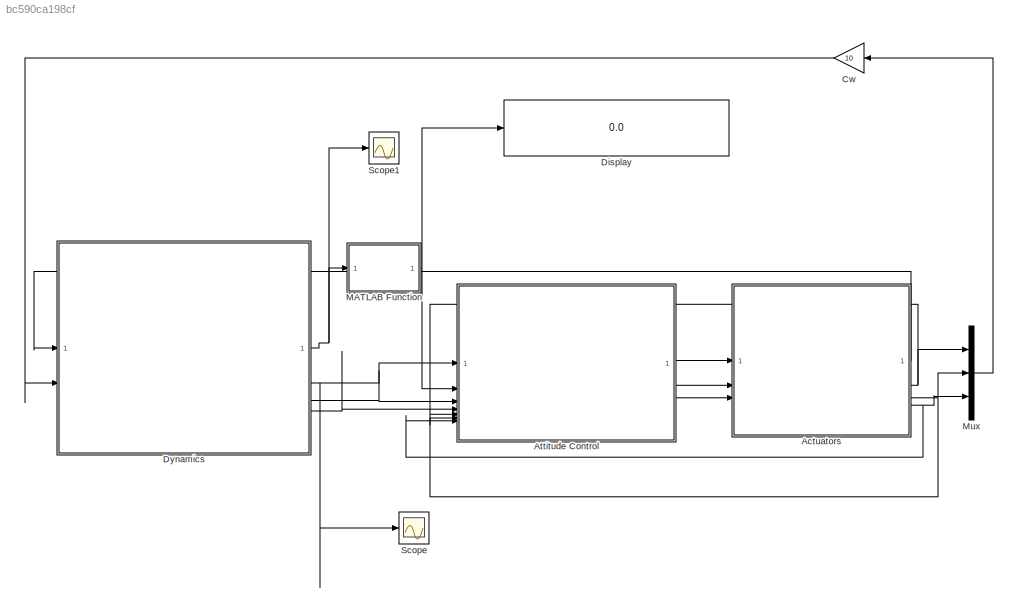
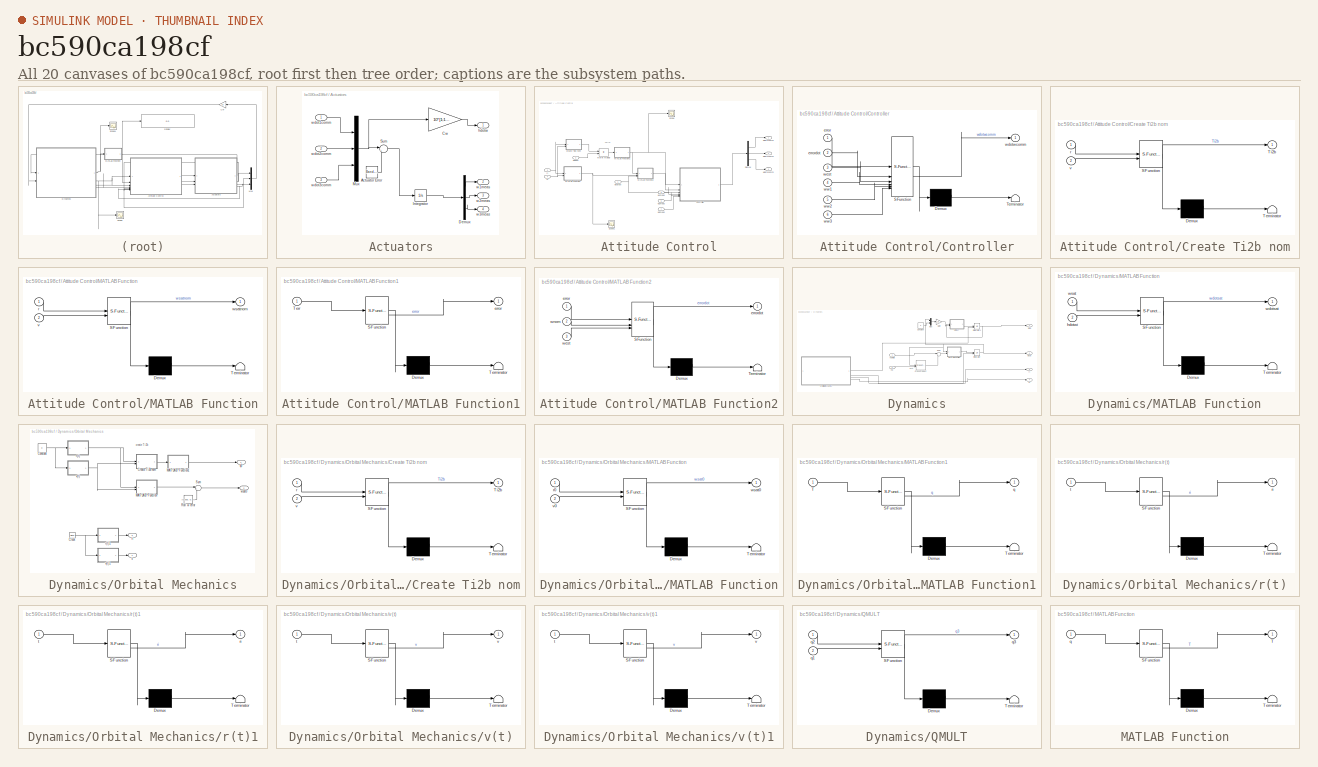
[diagram: thumbnail index - all 20 canvases of the model, root first then tree order]
MODEL slx_bc590ca198cf
KIND model
CONFIG AbsTol = auto
CONFIG EnableMultiTasking = off
CONFIG FixedStep = auto
CONFIG MaxStep = auto
CONFIG MinStep = auto
CONFIG RelTol = 1e-3
CONFIG SampleTimeConstraint = Unconstrained
CONFIG SolverName = VariableStepAuto
CONFIG StartTime = 0.0
CONFIG StopTime = 5340
BLOCK [SubSystem] Actuators
BLOCK [Reference] Actuators/Actuator Error  REF=simulink/Sources/Band-Limited
White Noise
  Commented = on
  SourceBlock = simulink/Sources/Band-Limited\nWhite Noise
  SourceType = Band-Limited White Noise.
BLOCK [Gain] Actuators/Cw
  Gain = 10*[1;1;1]
BLOCK [Demux] Actuators/Demux
  Outputs = 3
BLOCK [Integrator] Actuators/Integrator
  InitialCondition = [0;0;0]
BLOCK [Mux] Actuators/Mux
  DisplayOption = bar
  Inputs = 3
BLOCK [Sum] Actuators/Sum
  Inputs = |++
BLOCK [Outport] Actuators/hdotw
BLOCK [Outport] Actuators/w1meas
  Port = 2
BLOCK [Outport] Actuators/w2meas
  Port = 3
BLOCK [Outport] Actuators/w3meas
  Port = 4
BLOCK [Inport] Actuators/wdot1comm
BLOCK [Inport] Actuators/wdot2comm
  Port = 2
BLOCK [Inport] Actuators/wdot3comm
  Port = 3
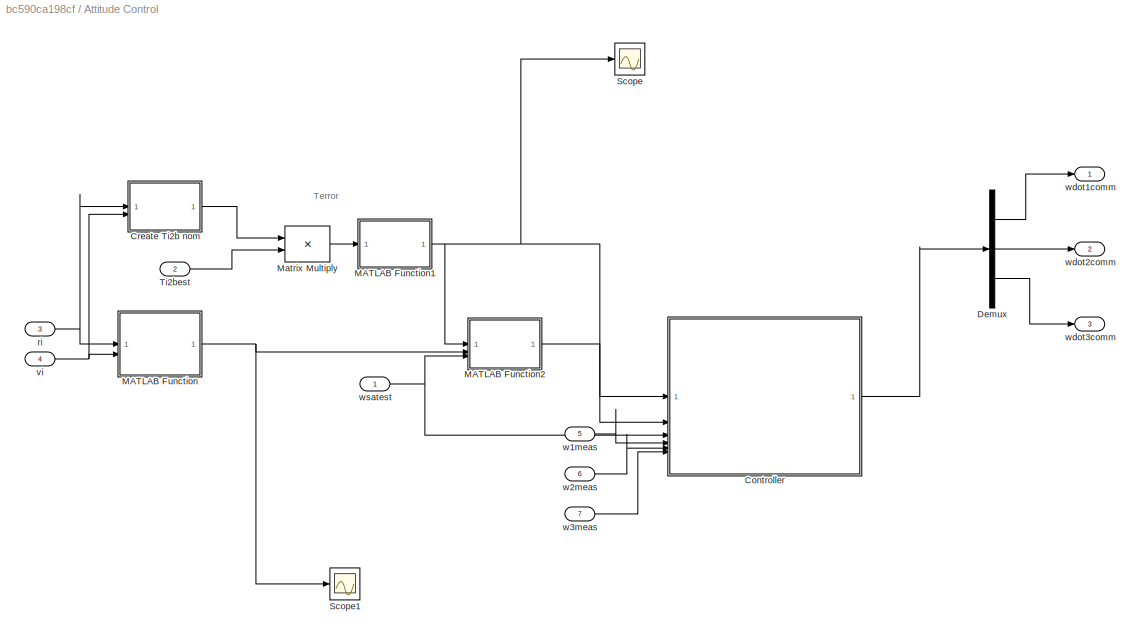
BLOCK [SubSystem] Attitude Control
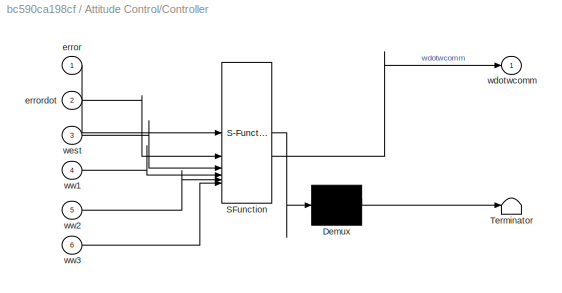
BLOCK [SubSystem] Attitude Control/Controller
  ErrorFcn = Stateflow.Translate.translate
  LibrarySourceBlock = simulink/User-Defined\nFunctions/MATLAB Function
  PermitHierarchicalResolution = ExplicitOnly
  SFBlockType = MATLAB Function
  TreatAsAtomicUnit = on
BLOCK [Demux] Attitude Control/Controller/ Demux 
  Outputs = 1
BLOCK [S-Function] Attitude Control/Controller/ SFunction 
  EnableBusSupport = on
  FunctionName = sf_sfun
  PortCounts = [6 2]
  SFcnIsStateOwnerBlock = off
  SFunctionDeploymentMode = off
  Tag = Stateflow S-Function 18
BLOCK [Terminator] Attitude Control/Controller/ Terminator 
BLOCK [Inport] Attitude Control/Controller/error
BLOCK [Inport] Attitude Control/Controller/errordot
  Port = 2
BLOCK [Outport] Attitude Control/Controller/wdotwcomm
BLOCK [Inport] Attitude Control/Controller/west
  Port = 3
BLOCK [Inport] Attitude Control/Controller/ww1
  Port = 4
BLOCK [Inport] Attitude Control/Controller/ww2
  Port = 5
BLOCK [Inport] Attitude Control/Controller/ww3
  Port = 6
BLOCK [SubSystem] Attitude Control/Create Ti2b nom
  ErrorFcn = Stateflow.Translate.translate
  LibrarySourceBlock = simulink/User-Defined\nFunctions/MATLAB Function
  PermitHierarchicalResolution = ExplicitOnly
  SFBlockType = MATLAB Function
  TreatAsAtomicUnit = on
BLOCK [Demux] Attitude Control/Create Ti2b nom/ Demux 
  Outputs = 1
BLOCK [S-Function] Attitude Control/Create Ti2b nom/ SFunction 
  EnableBusSupport = on
  FunctionName = sf_sfun
  PortCounts = [2 2]
  SFcnIsStateOwnerBlock = off
  SFunctionDeploymentMode = off
  Tag = Stateflow S-Function 14
BLOCK [Terminator] Attitude Control/Create Ti2b nom/ Terminator 
BLOCK [Outport] Attitude Control/Create Ti2b nom/Ti2b
BLOCK [Inport] Attitude Control/Create Ti2b nom/r
BLOCK [Inport] Attitude Control/Create Ti2b nom/v
  Port = 2
BLOCK [Demux] Attitude Control/Demux
  Outputs = 3
BLOCK [SubSystem] Attitude Control/MATLAB Function
  ErrorFcn = Stateflow.Translate.translate
  LibrarySourceBlock = simulink/User-Defined\nFunctions/MATLAB Function
  PermitHierarchicalResolution = ExplicitOnly
  SFBlockType = MATLAB Function
  TreatAsAtomicUnit = on
BLOCK [Demux] Attitude Control/MATLAB Function/ Demux 
  Outputs = 1
BLOCK [S-Function] Attitude Control/MATLAB Function/ SFunction 
  EnableBusSupport = on
  FunctionName = sf_sfun
  PortCounts = [2 2]
  SFcnIsStateOwnerBlock = off
  SFunctionDeploymentMode = off
  Tag = Stateflow S-Function 15
BLOCK [Terminator] Attitude Control/MATLAB Function/ Terminator 
BLOCK [Inport] Attitude Control/MATLAB Function/r
BLOCK [Inport] Attitude Control/MATLAB Function/v
  Port = 2
BLOCK [Outport] Attitude Control/MATLAB Function/wsatnom
BLOCK [SubSystem] Attitude Control/MATLAB Function1
  ErrorFcn = Stateflow.Translate.translate
  LibrarySourceBlock = simulink/User-Defined\nFunctions/MATLAB Function
  PermitHierarchicalResolution = ExplicitOnly
  SFBlockType = MATLAB Function
  TreatAsAtomicUnit = on
BLOCK [Demux] Attitude Control/MATLAB Function1/ Demux 
  Outputs = 1
BLOCK [S-Function] Attitude Control/MATLAB Function1/ SFunction 
  EnableBusSupport = on
  FunctionName = sf_sfun
  PortCounts = [1 2]
  SFcnIsStateOwnerBlock = off
  SFunctionDeploymentMode = off
  Tag = Stateflow S-Function 16
BLOCK [Terminator] Attitude Control/MATLAB Function1/ Terminator 
BLOCK [Inport] Attitude Control/MATLAB Function1/Terr
BLOCK [Outport] Attitude Control/MATLAB Function1/error
BLOCK [SubSystem] Attitude Control/MATLAB Function2
  ErrorFcn = Stateflow.Translate.translate
  LibrarySourceBlock = simulink/User-Defined\nFunctions/MATLAB Function
  PermitHierarchicalResolution = ExplicitOnly
  SFBlockType = MATLAB Function
  TreatAsAtomicUnit = on
BLOCK [Demux] Attitude Control/MATLAB Function2/ Demux 
  Outputs = 1
BLOCK [S-Function] Attitude Control/MATLAB Function2/ SFunction 
  EnableBusSupport = on
  FunctionName = sf_sfun
  PortCounts = [3 2]
  SFcnIsStateOwnerBlock = off
  SFunctionDeploymentMode = off
  Tag = Stateflow S-Function 17
BLOCK [Terminator] Attitude Control/MATLAB Function2/ Terminator 
BLOCK [Inport] Attitude Control/MATLAB Function2/error
BLOCK [Outport] Attitude Control/MATLAB Function2/errordot
BLOCK [Inport] Attitude Control/MATLAB Function2/west
  Port = 3
BLOCK [Inport] Attitude Control/MATLAB Function2/wnom
  Port = 2
BLOCK [Product] Attitude Control/Matrix Multiply
  Multiplication = Matrix(*)
BLOCK [Scope] Attitude Control/Scope
  Floating = off
  NumInputPorts = 1
  ScopeSpecificationString = Simulink.scopes.TimeScopeBlockCfg('CurrentConfiguration', extmgr.ConfigurationSet(extmgr.Configuration('Core','General UI',true),extmgr.Configuration('Core','Source UI',true),extmgr.Configuration('Sources','WiredSimulink',true,'DataLoggingVariableName','ScopeData1'),extmgr.Configuration('Visuals','Time Domain',true,'SerializedDisplays',{struct('MinYLimReal','-0.02347','MaxYLimReal','0.01957','YLab...<+1438ch>
BLOCK [Scope] Attitude Control/Scope1
  Floating = off
  NumInputPorts = 1
  ScopeSpecificationString = Simulink.scopes.TimeScopeBlockCfg('CurrentConfiguration', extmgr.ConfigurationSet(extmgr.Configuration('Core','General UI',true),extmgr.Configuration('Core','Source UI',true),extmgr.Configuration('Sources','WiredSimulink',true,'DataLoggingVariableName','ScopeData2'),extmgr.Configuration('Visuals','Time Domain',true,'SerializedDisplays',{struct('MinYLimReal','-0.00015','MaxYLimReal','0.00132','YLab...<+1447ch>
BLOCK [Inport] Attitude Control/Ti2best
  Port = 2
BLOCK [Inport] Attitude Control/ri
  Port = 3
BLOCK [Inport] Attitude Control/vi
  Port = 4
BLOCK [Inport] Attitude Control/w1meas
  Port = 5
BLOCK [Inport] Attitude Control/w2meas
  Port = 6
BLOCK [Inport] Attitude Control/w3meas
  Port = 7
BLOCK [Outport] Attitude Control/wdot1comm
BLOCK [Outport] Attitude Control/wdot2comm
  Port = 2
BLOCK [Outport] Attitude Control/wdot3comm
  Port = 3
BLOCK [Inport] Attitude Control/wsatest
BLOCK [Gain] Cw
  Gain = 10
BLOCK [Display] Display
  Decimation = 1
BLOCK [SubSystem] Dynamics
BLOCK [Constant] Dynamics/Constant
  Value = 0
BLOCK [Reference] Dynamics/Cross Product  REF=matrix_library/Cross Product
  LibrarySourceBlock = simulink/Matrix\nOperations/Cross Product
  SourceBlock = matrix_library/Cross Product
  SourceType = CrossProduct
BLOCK [Gain] Dynamics/Gain
  Gain = 1/2
BLOCK [Integrator] Dynamics/Integrator
  InitialConditionSource = external
BLOCK [Integrator] Dynamics/Integrator1
  InitialConditionSource = external
BLOCK [SubSystem] Dynamics/MATLAB Function
  ErrorFcn = Stateflow.Translate.translate
  LibrarySourceBlock = simulink/User-Defined\nFunctions/MATLAB Function
  PermitHierarchicalResolution = ExplicitOnly
  SFBlockType = MATLAB Function
  TreatAsAtomicUnit = on
BLOCK [Demux] Dynamics/MATLAB Function/ Demux 
  Outputs = 1
BLOCK [S-Function] Dynamics/MATLAB Function/ SFunction 
  EnableBusSupport = on
  FunctionName = sf_sfun
  PortCounts = [2 2]
  SFcnIsStateOwnerBlock = off
  SFunctionDeploymentMode = off
  Tag = Stateflow S-Function 1
BLOCK [Terminator] Dynamics/MATLAB Function/ Terminator 
BLOCK [Inport] Dynamics/MATLAB Function/hdotwi
  Port = 2
BLOCK [Outport] Dynamics/MATLAB Function/wdotsat
BLOCK [Inport] Dynamics/MATLAB Function/wsat
BLOCK [Mux] Dynamics/Mux
  DisplayOption = bar
  Inputs = 2
BLOCK [SubSystem] Dynamics/Orbital Mechanics
BLOCK [Clock] Dynamics/Orbital Mechanics/Clock
BLOCK [Constant] Dynamics/Orbital Mechanics/Constant
  Value = 0
BLOCK [SubSystem] Dynamics/Orbital Mechanics/Create Ti2b nom
  ErrorFcn = Stateflow.Translate.translate
  LibrarySourceBlock = simulink/User-Defined\nFunctions/MATLAB Function
  PermitHierarchicalResolution = ExplicitOnly
  SFBlockType = MATLAB Function
  TreatAsAtomicUnit = on
BLOCK [Demux] Dynamics/Orbital Mechanics/Create Ti2b nom/ Demux 
  Outputs = 1
BLOCK [S-Function] Dynamics/Orbital Mechanics/Create Ti2b nom/ SFunction 
  EnableBusSupport = on
  FunctionName = sf_sfun
  PortCounts = [2 2]
  SFcnIsStateOwnerBlock = off
  SFunctionDeploymentMode = off
  Tag = Stateflow S-Function 11
BLOCK [Terminator] Dynamics/Orbital Mechanics/Create Ti2b nom/ Terminator 
BLOCK [Outport] Dynamics/Orbital Mechanics/Create Ti2b nom/Ti2b
BLOCK [Inport] Dynamics/Orbital Mechanics/Create Ti2b nom/r
BLOCK [Inport] Dynamics/Orbital Mechanics/Create Ti2b nom/v
  Port = 2
BLOCK [SubSystem] Dynamics/Orbital Mechanics/MATLAB Function
  ErrorFcn = Stateflow.Translate.translate
  LibrarySourceBlock = simulink/User-Defined\nFunctions/MATLAB Function
  PermitHierarchicalResolution = ExplicitOnly
  SFBlockType = MATLAB Function
  TreatAsAtomicUnit = on
BLOCK [Demux] Dynamics/Orbital Mechanics/MATLAB Function/ Demux 
  Outputs = 1
BLOCK [S-Function] Dynamics/Orbital Mechanics/MATLAB Function/ SFunction 
  EnableBusSupport = on
  FunctionName = sf_sfun
  PortCounts = [2 2]
  SFcnIsStateOwnerBlock = off
  SFunctionDeploymentMode = off
  Tag = Stateflow S-Function 12
BLOCK [Terminator] Dynamics/Orbital Mechanics/MATLAB Function/ Terminator 
BLOCK [Inport] Dynamics/Orbital Mechanics/MATLAB Function/r0
BLOCK [Inport] Dynamics/Orbital Mechanics/MATLAB Function/v0
  Port = 2
BLOCK [Outport] Dynamics/Orbital Mechanics/MATLAB Function/wsat0
BLOCK [SubSystem] Dynamics/Orbital Mechanics/MATLAB Function1
  ErrorFcn = Stateflow.Translate.translate
  LibrarySourceBlock = simulink/User-Defined\nFunctions/MATLAB Function
  PermitHierarchicalResolution = ExplicitOnly
  SFBlockType = MATLAB Function
  TreatAsAtomicUnit = on
BLOCK [Demux] Dynamics/Orbital Mechanics/MATLAB Function1/ Demux 
  Outputs = 1
BLOCK [S-Function] Dynamics/Orbital Mechanics/MATLAB Function1/ SFunction 
  EnableBusSupport = on
  FunctionName = sf_sfun
  PortCounts = [1 2]
  SFcnIsStateOwnerBlock = off
  SFunctionDeploymentMode = off
  Tag = Stateflow S-Function 13
BLOCK [Terminator] Dynamics/Orbital Mechanics/MATLAB Function1/ Terminator 
BLOCK [Inport] Dynamics/Orbital Mechanics/MATLAB Function1/T
BLOCK [Outport] Dynamics/Orbital Mechanics/MATLAB Function1/q
BLOCK [Constant] Dynamics/Orbital Mechanics/Roll w error
  Commented = on
  Value = [0.005; 0; 0]
BLOCK [Sum] Dynamics/Orbital Mechanics/Sum
  Inputs = |++
BLOCK [Outport] Dynamics/Orbital Mechanics/q0
BLOCK [SubSystem] Dynamics/Orbital Mechanics/r(t)
  ErrorFcn = Stateflow.Translate.translate
  LibrarySourceBlock = simulink/User-Defined\nFunctions/MATLAB Function
  PermitHierarchicalResolution = ExplicitOnly
  SFBlockType = MATLAB Function
  TreatAsAtomicUnit = on
BLOCK [Demux] Dynamics/Orbital Mechanics/r(t)/ Demux 
  Outputs = 1
BLOCK [S-Function] Dynamics/Orbital Mechanics/r(t)/ SFunction 
  EnableBusSupport = on
  FunctionName = sf_sfun
  PortCounts = [1 2]
  SFcnIsStateOwnerBlock = off
  SFunctionDeploymentMode = off
  Tag = Stateflow S-Function 2
BLOCK [Terminator] Dynamics/Orbital Mechanics/r(t)/ Terminator 
BLOCK [Outport] Dynamics/Orbital Mechanics/r(t)/ri
BLOCK [Inport] Dynamics/Orbital Mechanics/r(t)/t
BLOCK [SubSystem] Dynamics/Orbital Mechanics/r(t)1
  ErrorFcn = Stateflow.Translate.translate
  LibrarySourceBlock = simulink/User-Defined\nFunctions/MATLAB Function
  PermitHierarchicalResolution = ExplicitOnly
  SFBlockType = MATLAB Function
  TreatAsAtomicUnit = on
BLOCK [Demux] Dynamics/Orbital Mechanics/r(t)1/ Demux 
  Outputs = 1
BLOCK [S-Function] Dynamics/Orbital Mechanics/r(t)1/ SFunction 
  EnableBusSupport = on
  FunctionName = sf_sfun
  PortCounts = [1 2]
  SFcnIsStateOwnerBlock = off
  SFunctionDeploymentMode = off
  Tag = Stateflow S-Function 19
BLOCK [Terminator] Dynamics/Orbital Mechanics/r(t)1/ Terminator 
BLOCK [Outport] Dynamics/Orbital Mechanics/r(t)1/ri
BLOCK [Inport] Dynamics/Orbital Mechanics/r(t)1/t
BLOCK [Outport] Dynamics/Orbital Mechanics/ri
  Port = 3
BLOCK [Outport] Dynamics/Orbital Mechanics/v
  Port = 4
BLOCK [SubSystem] Dynamics/Orbital Mechanics/v(t)
  ErrorFcn = Stateflow.Translate.translate
  LibrarySourceBlock = simulink/User-Defined\nFunctions/MATLAB Function
  PermitHierarchicalResolution = ExplicitOnly
  SFBlockType = MATLAB Function
  TreatAsAtomicUnit = on
BLOCK [Demux] Dynamics/Orbital Mechanics/v(t)/ Demux 
  Outputs = 1
BLOCK [S-Function] Dynamics/Orbital Mechanics/v(t)/ SFunction 
  EnableBusSupport = on
  FunctionName = sf_sfun
  PortCounts = [1 2]
  SFcnIsStateOwnerBlock = off
  SFunctionDeploymentMode = off
  Tag = Stateflow S-Function 3
BLOCK [Terminator] Dynamics/Orbital Mechanics/v(t)/ Terminator 
BLOCK [Inport] Dynamics/Orbital Mechanics/v(t)/t
BLOCK [Outport] Dynamics/Orbital Mechanics/v(t)/v
BLOCK [SubSystem] Dynamics/Orbital Mechanics/v(t)1
  ErrorFcn = Stateflow.Translate.translate
  LibrarySourceBlock = simulink/User-Defined\nFunctions/MATLAB Function
  PermitHierarchicalResolution = ExplicitOnly
  SFBlockType = MATLAB Function
  TreatAsAtomicUnit = on
BLOCK [Demux] Dynamics/Orbital Mechanics/v(t)1/ Demux 
  Outputs = 1
BLOCK [S-Function] Dynamics/Orbital Mechanics/v(t)1/ SFunction 
  EnableBusSupport = on
  FunctionName = sf_sfun
  PortCounts = [1 2]
  SFcnIsStateOwnerBlock = off
  SFunctionDeploymentMode = off
  Tag = Stateflow S-Function 20
BLOCK [Terminator] Dynamics/Orbital Mechanics/v(t)1/ Terminator 
BLOCK [Inport] Dynamics/Orbital Mechanics/v(t)1/t
BLOCK [Outport] Dynamics/Orbital Mechanics/v(t)1/v
BLOCK [Outport] Dynamics/Orbital Mechanics/wsat0
  Port = 2
BLOCK [SubSystem] Dynamics/QMULT
  ErrorFcn = Stateflow.Translate.translate
  LibrarySourceBlock = simulink/User-Defined\nFunctions/MATLAB Function
  PermitHierarchicalResolution = ExplicitOnly
  SFBlockType = MATLAB Function
  TreatAsAtomicUnit = on
BLOCK [Demux] Dynamics/QMULT/ Demux 
  Outputs = 1
BLOCK [S-Function] Dynamics/QMULT/ SFunction 
  EnableBusSupport = on
  FunctionName = sf_sfun
  PortCounts = [2 2]
  SFcnIsStateOwnerBlock = off
  SFunctionDeploymentMode = off
  Tag = Stateflow S-Function 10
BLOCK [Terminator] Dynamics/QMULT/ Terminator 
BLOCK [Inport] Dynamics/QMULT/q1
  Port = 2
BLOCK [Inport] Dynamics/QMULT/q2
BLOCK [Outport] Dynamics/QMULT/q3
BLOCK [Sum] Dynamics/Sum
  Inputs = |++
BLOCK [Inport] Dynamics/hdotwb
BLOCK [Inport] Dynamics/hw
  Port = 2
BLOCK [Outport] Dynamics/qi2b
BLOCK [Outport] Dynamics/ri
  Port = 3
BLOCK [Outport] Dynamics/vi
  Port = 4
BLOCK [Outport] Dynamics/wsat
  Port = 2
BLOCK [SubSystem] MATLAB Function
  ErrorFcn = Stateflow.Translate.translate
  LibrarySourceBlock = simulink/User-Defined\nFunctions/MATLAB Function
  PermitHierarchicalResolution = ExplicitOnly
  SFBlockType = MATLAB Function
  TreatAsAtomicUnit = on
BLOCK [Demux] MATLAB Function/ Demux 
  Outputs = 1
BLOCK [S-Function] MATLAB Function/ SFunction 
  EnableBusSupport = on
  FunctionName = sf_sfun
  PortCounts = [1 2]
  SFcnIsStateOwnerBlock = off
  SFunctionDeploymentMode = off
  Tag = Stateflow S-Function 4
BLOCK [Terminator] MATLAB Function/ Terminator 
BLOCK [Outport] MATLAB Function/T
BLOCK [Inport] MATLAB Function/q
BLOCK [Mux] Mux
  DisplayOption = bar
  Inputs = 3
BLOCK [Scope] Scope
  Floating = off
  NumInputPorts = 1
  ScopeSpecificationString = Simulink.scopes.TimeScopeBlockCfg('CurrentConfiguration', extmgr.ConfigurationSet(extmgr.Configuration('Core','General UI',true),extmgr.Configuration('Core','Source UI',true),extmgr.Configuration('Sources','WiredSimulink',true),extmgr.Configuration('Visuals','Time Domain',true,'SerializedDisplays',{struct('MinYLimReal','-0.00646','MaxYLimReal','0.0058','YLabelReal','','MinYLimMag','0.00000','MaxYL...<+1435ch>
BLOCK [Scope] Scope1
  Floating = off
  NumInputPorts = 1
  ScopeSpecificationString = Simulink.scopes.TimeScopeBlockCfg('CurrentConfiguration', extmgr.ConfigurationSet(extmgr.Configuration('Core','General UI',true),extmgr.Configuration('Core','Source UI',true),extmgr.Configuration('Sources','WiredSimulink',true,'DataLoggingVariableName','ScopeData3'),extmgr.Configuration('Visuals','Time Domain',true,'SerializedDisplays',{struct('MinYLimReal','-1.03895','MaxYLimReal','1.14197','YLab...<+1445ch>
ANNOTATION Attitude Control: Terror
ANNOTATION Dynamics: wsat
ANNOTATION Dynamics/Orbital Mechanics: create Ti2b
LINE Actuators/Actuator Error:1 -> Actuators/Sum:2
LINE Actuators/Cw:1 -> Actuators/hdotw:1
LINE Actuators/Demux:1 -> Actuators/w1meas:1
LINE Actuators/Demux:2 -> Actuators/w2meas:1
LINE Actuators/Demux:3 -> Actuators/w3meas:1
LINE Actuators/Integrator:1 -> Actuators/Demux:1
NET Actuators/Mux:1 -> Actuators/Cw:1, Actuators/Sum:1
LINE Actuators/Sum:1 -> Actuators/Integrator:1
LINE Actuators/wdot1comm:1 -> Actuators/Mux:1
LINE Actuators/wdot2comm:1 -> Actuators/Mux:2
LINE Actuators/wdot3comm:1 -> Actuators/Mux:3
LINE Actuators:1 -> Dynamics:1
NET Actuators:2 -> Attitude Control:5, Mux:1
NET Actuators:3 -> Attitude Control:6, Mux:2
NET Actuators:4 -> Attitude Control:7, Mux:3
LINE Attitude Control/Controller:1 -> Attitude Control/Demux:1
LINE Attitude Control/Create Ti2b nom:1 -> Attitude Control/Matrix Multiply:1
LINE Attitude Control/Demux:1 -> Attitude Control/wdot1comm:1
LINE Attitude Control/Demux:2 -> Attitude Control/wdot2comm:1
LINE Attitude Control/Demux:3 -> Attitude Control/wdot3comm:1
NET Attitude Control/MATLAB Function1:1 -> Attitude Control/Controller:1, Attitude Control/MATLAB Function2:1, Attitude Control/Scope:1
LINE Attitude Control/MATLAB Function2:1 -> Attitude Control/Controller:2
NET Attitude Control/MATLAB Function:1 -> Attitude Control/MATLAB Function2:2, Attitude Control/Scope1:1
LINE Attitude Control/Matrix Multiply:1 -> Attitude Control/MATLAB Function1:1
LINE Attitude Control/Ti2best:1 -> Attitude Control/Matrix Multiply:2
NET Attitude Control/ri:1 -> Attitude Control/Create Ti2b nom:1, Attitude Control/MATLAB Function:1
NET Attitude Control/vi:1 -> Attitude Control/Create Ti2b nom:2, Attitude Control/MATLAB Function:2
LINE Attitude Control/w1meas:1 -> Attitude Control/Controller:4
LINE Attitude Control/w2meas:1 -> Attitude Control/Controller:5
LINE Attitude Control/w3meas:1 -> Attitude Control/Controller:6
NET Attitude Control/wsatest:1 -> Attitude Control/Controller:3, Attitude Control/MATLAB Function2:3
LINE Attitude Control:1 -> Actuators:1
LINE Attitude Control:2 -> Actuators:2
LINE Attitude Control:3 -> Actuators:3
LINE Cw:1 -> Dynamics:2
LINE Dynamics/Constant:1 -> Dynamics/Mux:2
LINE Dynamics/Cross Product:1 -> Dynamics/Sum:2
LINE Dynamics/Gain:1 -> Dynamics/QMULT:2
NET Dynamics/Integrator1:1 -> Dynamics/QMULT:1, Dynamics/qi2b:1
NET Dynamics/Integrator:1 -> Dynamics/Cross Product:1, Dynamics/MATLAB Function:1, Dynamics/Mux:1, Dynamics/wsat:1
LINE Dynamics/MATLAB Function:1 -> Dynamics/Integrator:1
LINE Dynamics/Mux:1 -> Dynamics/Gain:1
NET Dynamics/Orbital Mechanics/Clock:1 -> Dynamics/Orbital Mechanics/r(t)1:1, Dynamics/Orbital Mechanics/v(t)1:1
NET Dynamics/Orbital Mechanics/Constant:1 -> Dynamics/Orbital Mechanics/r(t):1, Dynamics/Orbital Mechanics/v(t):1
LINE Dynamics/Orbital Mechanics/Create Ti2b nom:1 -> Dynamics/Orbital Mechanics/MATLAB Function1:1
LINE Dynamics/Orbital Mechanics/MATLAB Function1:1 -> Dynamics/Orbital Mechanics/q0:1
LINE Dynamics/Orbital Mechanics/MATLAB Function:1 -> Dynamics/Orbital Mechanics/Sum:1
LINE Dynamics/Orbital Mechanics/Roll w error:1 -> Dynamics/Orbital Mechanics/Sum:2
LINE Dynamics/Orbital Mechanics/Sum:1 -> Dynamics/Orbital Mechanics/wsat0:1
LINE Dynamics/Orbital Mechanics/r(t)1:1 -> Dynamics/Orbital Mechanics/ri:1
NET Dynamics/Orbital Mechanics/r(t):1 -> Dynamics/Orbital Mechanics/Create Ti2b nom:1, Dynamics/Orbital Mechanics/MATLAB Function:1
LINE Dynamics/Orbital Mechanics/v(t)1:1 -> Dynamics/Orbital Mechanics/v:1
NET Dynamics/Orbital Mechanics/v(t):1 -> Dynamics/Orbital Mechanics/Create Ti2b nom:2, Dynamics/Orbital Mechanics/MATLAB Function:2
LINE Dynamics/Orbital Mechanics:1 -> Dynamics/Integrator1:2
LINE Dynamics/Orbital Mechanics:2 -> Dynamics/Integrator:2
LINE Dynamics/Orbital Mechanics:3 -> Dynamics/ri:1
LINE Dynamics/Orbital Mechanics:4 -> Dynamics/vi:1
LINE Dynamics/QMULT:1 -> Dynamics/Integrator1:1
LINE Dynamics/Sum:1 -> Dynamics/MATLAB Function:2
LINE Dynamics/hdotwb:1 -> Dynamics/Sum:1
LINE Dynamics/hw:1 -> Dynamics/Cross Product:2
NET Dynamics:1 -> MATLAB Function:1, Scope1:1
NET Dynamics:2 -> Attitude Control:1, Scope:1
LINE Dynamics:3 -> Attitude Control:3
LINE Dynamics:4 -> Attitude Control:4
NET MATLAB Function:1 -> Attitude Control:2, Display:1
LINE Mux:1 -> Cw:1
note: NET lines group one-source signal fan-out (src -> all destinations, sorted); 1:1 wires keep LINE
CHART Attitude Control/Controller states=1 transitions=1
  STATE_LABEL 'eML_blk_kernel()'
  STATE_LABEL 'SCRIPT:\nfunction wdotwcomm = fcn(error,errordot,west,ww1,ww2,ww3)\nJsat = [1000 0 0; 0 500 0; 0 0 600];\nKd = 0.05*eye(3);\nKp = 0.08*eye(3);\nCw = 10;\nwdotwcomm = (Jsat*Kd ./ Cw) * error + (Jsat*Kp ./ Cw) * errordot - cross(west, [ww1; ww2; ww3]);\n'
CHART Dynamics/Orbital Mechanics/r(t)1 states=1 transitions=1
  STATE_LABEL 'eML_blk_kernel()'
  STATE_LABEL 'SCRIPT:\nfunction ri = fcn(t)\n\np = 6.6e6;\nmu = 3.986e14;\nw = sqrt(mu / (p^3));\n\nri = (p/sqrt(2)) * [-cos(w*t); sqrt(2)*sin(w*t); cos(w*t)];\n\n'
CHART Dynamics/MATLAB Function states=1 transitions=1
  STATE_LABEL 'eML_blk_kernel()'
  STATE_LABEL 'SCRIPT:\nfunction wdotsat = fcn(wsat,hdotwi)\n\nJ = [1000 0 0;\n     0 500 0;\n     0 0 600];\n\nwdotsat = inv(J) * (cross(-wsat,(J*wsat)) - hdotwi); %#ok<MINV> \nend'
CHART Dynamics/Orbital Mechanics/v(t)1 states=1 transitions=1
  STATE_LABEL 'eML_blk_kernel()'
  STATE_LABEL 'SCRIPT:\nfunction v = fcn(t)\n\np = 6.6e6;\nmu = 3.986e14;\nw = sqrt(mu / (p^3));\n\nv = (w*p/sqrt(2)) * [sin(w*t); sqrt(2)*cos(w*t); -sin(w*t)];\n'
CHART Dynamics/Orbital Mechanics/r(t) states=1 transitions=1
  STATE_LABEL 'eML_blk_kernel()'
  STATE_LABEL 'SCRIPT:\nfunction ri = fcn(t)\n\np = 6.6e6;\nmu = 3.986e14;\nw = sqrt(mu / (p^3));\n\nri = (p/sqrt(2)) * [-cos(w*t); sqrt(2)*sin(w*t); cos(w*t)];\n\n'
CHART Dynamics/Orbital Mechanics/v(t) states=1 transitions=1
  STATE_LABEL 'eML_blk_kernel()'
  STATE_LABEL 'SCRIPT:\nfunction v = fcn(t)\n\np = 6.6e6;\nmu = 3.986e14;\nw = sqrt(mu / (p^3));\n\nv = (w*p/sqrt(2)) * [sin(w*t); sqrt(2)*cos(w*t); -sin(w*t)];\n'
CHART MATLAB Function states=1 transitions=1
  STATE_LABEL 'eML_blk_kernel()'
  STATE_LABEL 'SCRIPT:\nfunction T = q2T(q)\n\nT = eye(3) - 2*q(4)*skewsym(q(1:3)) + 2*(skewsym(q(1:3))*skewsym(q(1:3)));\n\nend\n\nfunction skewed = skewsym(v)\nskewed = [0 -v(3) v(2);\n          v(3) 0 -v(1);\n          -v(2) v(1) 0];\nend\n'
CHART Dynamics/QMULT states=1 transitions=1
  STATE_LABEL 'eML_blk_kernel()'
  STATE_LABEL 'SCRIPT:\nfunction q3 = qmult(q2,q1)\n\nq3 = [q2(4).*q1(1:3) + q1(4).*q2(1:3) - cross(q2(1:3),q1(1:3));\n    q2(4)*q1(4) - dot(q2(1:3),q1(1:3))];\n\nend'
CHART Dynamics/Orbital Mechanics/Create Ti2b nom states=1 transitions=1
  STATE_LABEL 'eML_blk_kernel()'
  STATE_LABEL "SCRIPT:\nfunction Ti2b = fcn(r,v)\n\nxib = -r / norm(r);\nyib = v / norm(v);\nzib = cross(xib,yib);\n\nTi2b = [xib'; yib'; zib'];\n"
CHART Dynamics/Orbital Mechanics/MATLAB Function states=1 transitions=1
  STATE_LABEL 'eML_blk_kernel()'
  STATE_LABEL 'SCRIPT:\nfunction wsat0= fcn(r0,v0)\nmu = 3.986e14;\nrho = 6.6e6;\nwmag = sqrt(mu / rho^3);\n\nh_orbit = cross(r0,v0); % this is the axis our satellite is orbiting about\naxis = h_orbit / norm(h_orbit);\n\nwsat0 = wmag .* [0;0;1];\n\n\n\n'
CHART Dynamics/Orbital Mechanics/MATLAB Function1 states=1 transitions=1
  STATE_LABEL 'eML_blk_kernel()'
  STATE_LABEL 'SCRIPT:\nfunction q = T2q(T)\n\nq = zeros(4,1);\n\nq(4) = sqrt(.25*(1 + T(1,1) + T(2,2) + T(3,3)));\n\nq = (1/(4*q(4))) .* [T(2,3) - T(3,2); T(3,1) + T(1,3); T(1,2) + T(2,1); 4 * q(4)^2 ];\n\nend\n\n\n\n'
CHART Attitude Control/Create Ti2b nom states=1 transitions=1
  STATE_LABEL 'eML_blk_kernel()'
  STATE_LABEL "SCRIPT:\nfunction Ti2b = fcn(r,v)\n\nxib = -r / norm(r);\nyib = v / norm(v);\nzib = cross(xib,yib);\n\nTi2b = [xib'; yib'; zib'];\n"
CHART Attitude Control/MATLAB Function states=1 transitions=1
  STATE_LABEL 'eML_blk_kernel()'
  STATE_LABEL 'SCRIPT:\nfunction wsatnom = fcn(r,v)\nmu = 398600.0;\nrho = 6600;\nwmag = sqrt(mu / rho^3);\n\n\n\nwsatnom = wmag .* [0;0;1];\n\n\n\n'
CHART Attitude Control/MATLAB Function1 states=1 transitions=1
  STATE_LABEL 'eML_blk_kernel()'
  STATE_LABEL 'SCRIPT:\nfunction error = fcn(Terr)\n\nerror = -0.5 * [Terr(3,2) - Terr(2,3); Terr(1,3) - Terr(3,1); Terr(2,1) - Terr(1,2)];\n'
CHART Attitude Control/MATLAB Function2 states=1 transitions=1
  STATE_LABEL 'eML_blk_kernel()'
  STATE_LABEL 'SCRIPT:\nfunction errordot = fcn(error,wnom,west)\n\nerrordot = -skewsym(wnom)*error + (-wnom + west);\n\nend\nfunction skewed = skewsym(v)\nskewed = [0 -v(3) v(2);\n          v(3) 0 -v(1);\n          -v(2) v(1) 0];\nend\n'
CHART  states=0 transitions=0
CHART  states=0 transitions=0
CHART  states=0 transitions=0
CHART  states=0 transitions=0
CHART  states=0 transitions=0
CHART  states=0 transitions=0
CHART  states=0 transitions=0
CHART  states=0 transitions=0
CHART  states=0 transitions=0
CHART  states=0 transitions=0
CHART  states=0 transitions=0
CHART  states=0 transitions=0
CHART  states=0 transitions=0
CHART  states=0 transitions=0
CHART  states=0 transitions=0
